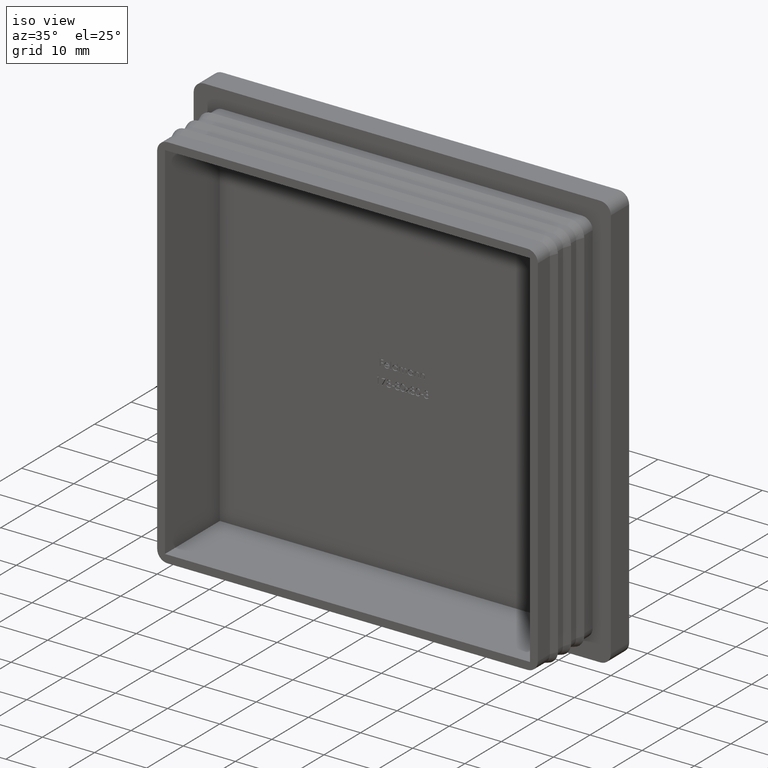
[diagram: clean part render]
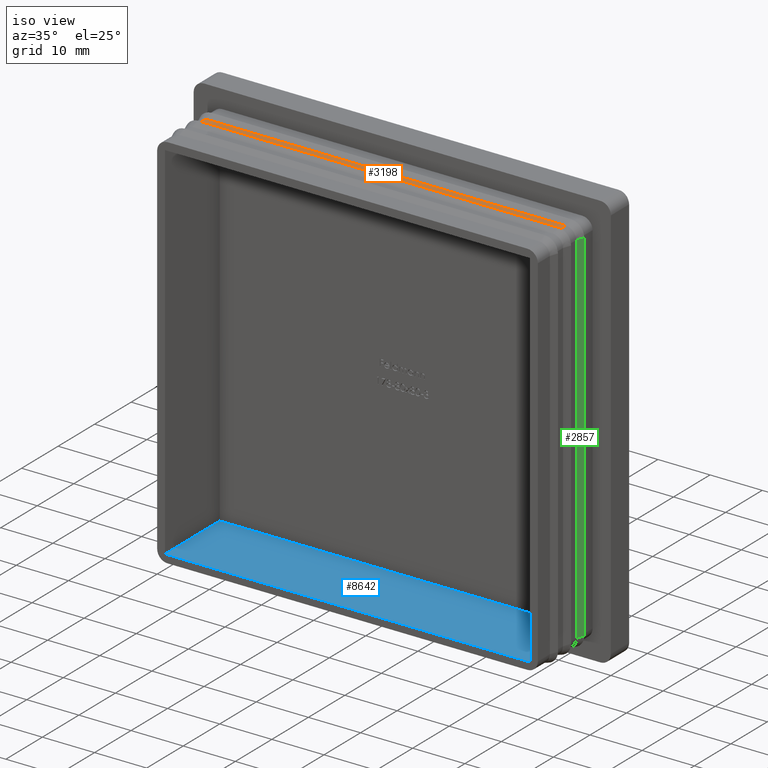
[diagram: same view with three faces highlighted in distinct colors, each labeled with its STEP entity id]
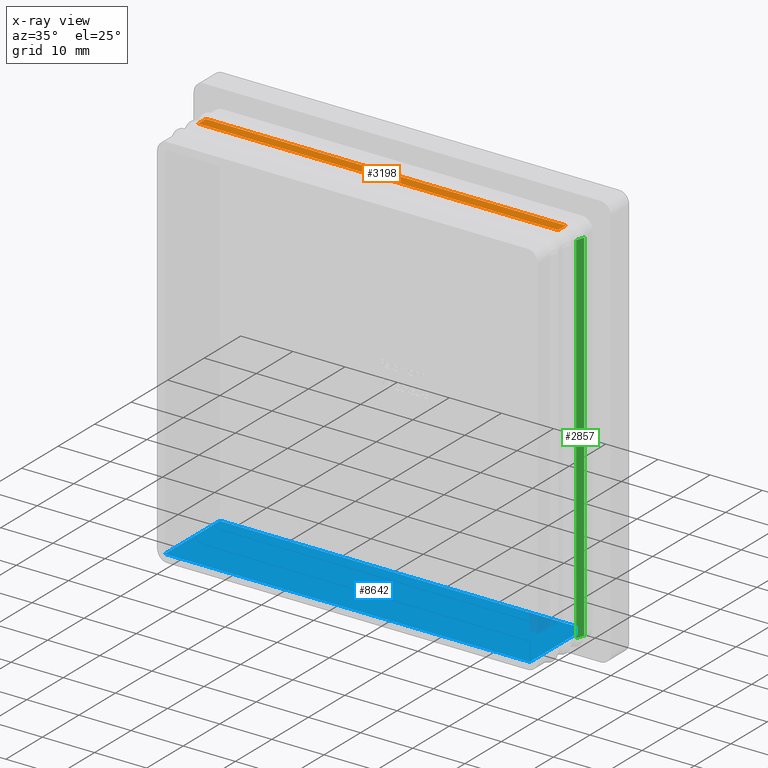
[diagram: x-ray of the same camera — body ghosted, the three highlighted faces saturated]
A machine part, iso view with three faces highlighted in distinct colors.
The next image is the same camera in x-ray (body ghosted, the three faces saturated) — at least one of them is partly hidden behind the body in this view.
Their STEP definitions:

[orange] entity #3198 — the highlighted planar face has unit normal (0, 0, -1).
#116 = EDGE_CURVE ( 'NONE', #16718, #14131, #6431, .T. ) ;
#514 = VECTOR ( 'NONE', #14999, 1000.000000000000000 ) ;
#626 = CARTESIAN_POINT ( 'NONE',  ( 34.49999999999998600, -15.00000000000000000, 36.50000000000000700 ) ) ;
#1254 = VECTOR ( 'NONE', #13617, 1000.000000000000000 ) ;
#1480 = LINE ( 'NONE', #626, #14640 ) ;
#1859 = VERTEX_POINT ( 'NONE', #1938 ) ;
#1938 = CARTESIAN_POINT ( 'NONE',  ( 34.49999999999998600, -4.500000000000003600, 36.50000000000000700 ) ) ;
#3062 = CARTESIAN_POINT ( 'NONE',  ( -34.50000000000000000, -6.600000000000004100, 36.50000000000000000 ) ) ;
#3198 = ADVANCED_FACE ( 'NONE', ( #11400 ), #5734, .F. ) ;
#3581 = CARTESIAN_POINT ( 'NONE',  ( -34.50000000000000000, -4.500000000000003600, 36.49999999999999300 ) ) ;
#3877 = EDGE_CURVE ( 'NONE', #14831, #1859, #1480, .T. ) ;
#4743 = LINE ( 'NONE', #3062, #1254 ) ;
#5734 = PLANE ( 'NONE',  #16417 ) ;
#6431 = LINE ( 'NONE', #16501, #10122 ) ;
#7067 = DIRECTION ( 'NONE',  ( 1.901066822988281900E-016, 0.0000000000000000000, -1.000000000000000000 ) ) ;
#7304 = ORIENTED_EDGE ( 'NONE', *, *, #116, .T. ) ;
#8319 = ORIENTED_EDGE ( 'NONE', *, *, #14959, .F. ) ;
#9748 = CARTESIAN_POINT ( 'NONE',  ( -34.50000000000000000, -4.500000000000003600, 36.49999999999999300 ) ) ;
#10122 = VECTOR ( 'NONE', #15581, 1000.000000000000000 ) ;
#10825 = ORIENTED_EDGE ( 'NONE', *, *, #13808, .T. ) ;
#11400 = FACE_OUTER_BOUND ( 'NONE', #11996, .T. ) ;
#11996 = EDGE_LOOP ( 'NONE', ( #7304, #10825, #13448, #8319 ) ) ;
#13042 = CARTESIAN_POINT ( 'NONE',  ( 34.49999999999996400, -6.600000000000004100, 36.49999999999998600 ) ) ;
#13186 = LINE ( 'NONE', #9748, #514 ) ;
#13321 = CARTESIAN_POINT ( 'NONE',  ( -34.50000000000000000, -6.600000000000004100, 36.50000000000000000 ) ) ;
#13448 = ORIENTED_EDGE ( 'NONE', *, *, #3877, .T. ) ;
#13617 = DIRECTION ( 'NONE',  ( 1.000000000000000000, -0.0000000000000000000, 2.011273595335428300E-016 ) ) ;
#13808 = EDGE_CURVE ( 'NONE', #14131, #14831, #4743, .T. ) ;
#14131 = VERTEX_POINT ( 'NONE', #13321 ) ;
#14640 = VECTOR ( 'NONE', #16751, 1000.000000000000000 ) ;
#14831 = VERTEX_POINT ( 'NONE', #13042 ) ;
#14933 = CARTESIAN_POINT ( 'NONE',  ( -36.50000000000000700, -15.00000000000000000, 36.49999999999999300 ) ) ;
#14959 = EDGE_CURVE ( 'NONE', #16718, #1859, #13186, .T. ) ;
#14999 = DIRECTION ( 'NONE',  ( 1.000000000000000000, -0.0000000000000000000, 2.011273595335428300E-016 ) ) ;
#15581 = DIRECTION ( 'NONE',  ( -0.0000000000000000000, -1.000000000000000000, -0.0000000000000000000 ) ) ;
#16222 = DIRECTION ( 'NONE',  ( -1.000000000000000000, 0.0000000000000000000, -1.901066822988281900E-016 ) ) ;
#16417 = AXIS2_PLACEMENT_3D ( 'NONE', #14933, #7067, #16222 ) ;
#16501 = CARTESIAN_POINT ( 'NONE',  ( -34.50000000000000000, -15.00000000000000000, 36.49999999999999300 ) ) ;
#16718 = VERTEX_POINT ( 'NONE', #3581 ) ;
#16751 = DIRECTION ( 'NONE',  ( 0.0000000000000000000, 1.000000000000000000, 0.0000000000000000000 ) ) ;

[blue] entity #8642 — the highlighted planar face has unit normal (-0, -0, 1).
#642 = VECTOR ( 'NONE', #3471, 1000.000000000000000 ) ;
#1881 = ORIENTED_EDGE ( 'NONE', *, *, #12261, .F. ) ;
#2155 = DIRECTION ( 'NONE',  ( 0.0000000000000000000, 1.000000000000000000, 0.0000000000000000000 ) ) ;
#2673 = VERTEX_POINT ( 'NONE', #11395 ) ;
#3011 = EDGE_CURVE ( 'NONE', #12169, #5236, #13033, .T. ) ;
#3139 = ORIENTED_EDGE ( 'NONE', *, *, #3011, .T. ) ;
#3471 = DIRECTION ( 'NONE',  ( -1.000000000000000000, 0.0000000000000000000, -1.901066822988281900E-016 ) ) ;
#3878 = DIRECTION ( 'NONE',  ( 0.0000000000000000000, 1.000000000000000000, 0.0000000000000000000 ) ) ;
#3898 = EDGE_CURVE ( 'NONE', #5236, #2673, #4151, .T. ) ;
#4117 = VERTEX_POINT ( 'NONE', #5390 ) ;
#4151 = LINE ( 'NONE', #12712, #642 ) ;
#4186 = FACE_OUTER_BOUND ( 'NONE', #8749, .T. ) ;
#5143 = CARTESIAN_POINT ( 'NONE',  ( 34.99999999999999300, -15.00000000000000000, -34.99999999999999300 ) ) ;
#5236 = VERTEX_POINT ( 'NONE', #13763 ) ;
#5285 = VECTOR ( 'NONE', #2155, 1000.000000000000000 ) ;
#5390 = CARTESIAN_POINT ( 'NONE',  ( -35.00000000000000000, -15.00000000000000000, -35.00000000000000000 ) ) ;
#7180 = DIRECTION ( 'NONE',  ( 1.000000000000000000, 0.0000000000000000000, 1.901066822988281900E-016 ) ) ;
#7222 = VECTOR ( 'NONE', #7180, 1000.000000000000000 ) ;
#7715 = DIRECTION ( 'NONE',  ( 1.000000000000000000, 0.0000000000000000000, 1.901066822988281900E-016 ) ) ;
#8642 = ADVANCED_FACE ( 'NONE', ( #4186 ), #12949, .T. ) ;
#8749 = EDGE_LOOP ( 'NONE', ( #13628, #1881, #15033, #3139 ) ) ;
#9536 = VECTOR ( 'NONE', #3878, 1000.000000000000000 ) ;
#10788 = CARTESIAN_POINT ( 'NONE',  ( 34.99999999999999300, -15.00000000000000000, -34.99999999999999300 ) ) ;
#11164 = LINE ( 'NONE', #12438, #7222 ) ;
#11395 = CARTESIAN_POINT ( 'NONE',  ( -35.00000000000000000, 0.0000000000000000000, -35.00000000000000000 ) ) ;
#11402 = CARTESIAN_POINT ( 'NONE',  ( -35.00000000000000000, -15.00000000000000000, -35.00000000000000000 ) ) ;
#11519 = EDGE_CURVE ( 'NONE', #4117, #12169, #11164, .T. ) ;
#12169 = VERTEX_POINT ( 'NONE', #10788 ) ;
#12261 = EDGE_CURVE ( 'NONE', #4117, #2673, #15754, .T. ) ;
#12438 = CARTESIAN_POINT ( 'NONE',  ( -36.50000000000000700, -15.00000000000000000, -35.00000000000000000 ) ) ;
#12712 = CARTESIAN_POINT ( 'NONE',  ( 6.653733880458986300E-015, 0.0000000000000000000, -34.99999999999999300 ) ) ;
#12949 = PLANE ( 'NONE',  #15266 ) ;
#13033 = LINE ( 'NONE', #5143, #9536 ) ;
#13628 = ORIENTED_EDGE ( 'NONE', *, *, #3898, .T. ) ;
#13763 = CARTESIAN_POINT ( 'NONE',  ( 34.99999999999999300, 0.0000000000000000000, -34.99999999999999300 ) ) ;
#14260 = CARTESIAN_POINT ( 'NONE',  ( -36.50000000000000700, -15.00000000000000000, -35.00000000000000000 ) ) ;
#15033 = ORIENTED_EDGE ( 'NONE', *, *, #11519, .T. ) ;
#15266 = AXIS2_PLACEMENT_3D ( 'NONE', #14260, #15557, #7715 ) ;
#15557 = DIRECTION ( 'NONE',  ( -1.901066822988281900E-016, -0.0000000000000000000, 1.000000000000000000 ) ) ;
#15754 = LINE ( 'NONE', #11402, #5285 ) ;

[green] entity #2857 — the highlighted planar face has unit normal (-0.9487, 0.3162, 0).
#730 = LINE ( 'NONE', #11759, #13513 ) ;
#1313 = DIRECTION ( 'NONE',  ( 0.0000000000000000000, 0.0000000000000000000, 1.000000000000000000 ) ) ;
#1692 = EDGE_CURVE ( 'NONE', #2891, #14470, #12429, .T. ) ;
#2268 = LINE ( 'NONE', #15850, #8359 ) ;
#2357 = AXIS2_PLACEMENT_3D ( 'NONE', #2495, #3818, #13044 ) ;
#2495 = CARTESIAN_POINT ( 'NONE',  ( 36.49999999999997200, -4.500000000000003600, -34.49999999999997200 ) ) ;
#2694 = EDGE_LOOP ( 'NONE', ( #2757, #9285, #9114, #10692 ) ) ;
#2757 = ORIENTED_EDGE ( 'NONE', *, *, #8333, .F. ) ;
#2857 = ADVANCED_FACE ( 'NONE', ( #11200 ), #10413, .F. ) ;
#2891 = VERTEX_POINT ( 'NONE', #4801 ) ;
#3153 = DIRECTION ( 'NONE',  ( -0.3162277660168382700, -0.9486832980505136600, 5.809009821810588100E-017 ) ) ;
#3229 = CARTESIAN_POINT ( 'NONE',  ( 36.49999999999997200, -4.500000000000003600, 34.50000000000001400 ) ) ;
#3818 = DIRECTION ( 'NONE',  ( -0.9486832980505137700, 0.3162277660168383300, 0.0000000000000000000 ) ) ;
#4801 = CARTESIAN_POINT ( 'NONE',  ( 36.99999999999997200, -3.000000000000004900, 34.50000000000001400 ) ) ;
#6605 = CARTESIAN_POINT ( 'NONE',  ( 36.49999999999997200, -4.500000000000003600, -34.49999999999997200 ) ) ;
#6866 = CARTESIAN_POINT ( 'NONE',  ( 36.99999999999997200, -3.000000000000004900, -34.49999999999997200 ) ) ;
#7334 = LINE ( 'NONE', #6605, #10018 ) ;
#7562 = CARTESIAN_POINT ( 'NONE',  ( 36.49999999999997200, -4.500000000000003600, -34.49999999999997200 ) ) ;
#8016 = DIRECTION ( 'NONE',  ( -0.3162277660168382700, -0.9486832980505136600, 5.809009821810588100E-017 ) ) ;
#8333 = EDGE_CURVE ( 'NONE', #16869, #12388, #2268, .T. ) ;
#8359 = VECTOR ( 'NONE', #8016, 1000.000000000000100 ) ;
#8937 = VECTOR ( 'NONE', #3153, 1000.000000000000100 ) ;
#9114 = ORIENTED_EDGE ( 'NONE', *, *, #1692, .T. ) ;
#9285 = ORIENTED_EDGE ( 'NONE', *, *, #12977, .T. ) ;
#10018 = VECTOR ( 'NONE', #11880, 1000.000000000000000 ) ;
#10413 = PLANE ( 'NONE',  #2357 ) ;
#10692 = ORIENTED_EDGE ( 'NONE', *, *, #13045, .F. ) ;
#11200 = FACE_OUTER_BOUND ( 'NONE', #2694, .T. ) ;
#11759 = CARTESIAN_POINT ( 'NONE',  ( 36.99999999999997200, -3.000000000000004900, -34.49999999999997200 ) ) ;
#11880 = DIRECTION ( 'NONE',  ( 0.0000000000000000000, 0.0000000000000000000, 1.000000000000000000 ) ) ;
#12388 = VERTEX_POINT ( 'NONE', #7562 ) ;
#12429 = LINE ( 'NONE', #3229, #8937 ) ;
#12977 = EDGE_CURVE ( 'NONE', #16869, #2891, #730, .T. ) ;
#13044 = DIRECTION ( 'NONE',  ( -0.3162277660168382700, -0.9486832980505136600, 0.0000000000000000000 ) ) ;
#13045 = EDGE_CURVE ( 'NONE', #12388, #14470, #7334, .T. ) ;
#13513 = VECTOR ( 'NONE', #1313, 1000.000000000000000 ) ;
#14470 = VERTEX_POINT ( 'NONE', #16915 ) ;
#15850 = CARTESIAN_POINT ( 'NONE',  ( 36.49999999999997200, -4.500000000000003600, -34.49999999999997200 ) ) ;
#16869 = VERTEX_POINT ( 'NONE', #6866 ) ;
#16915 = CARTESIAN_POINT ( 'NONE',  ( 36.49999999999997200, -4.500000000000003600, 34.50000000000001400 ) ) ;